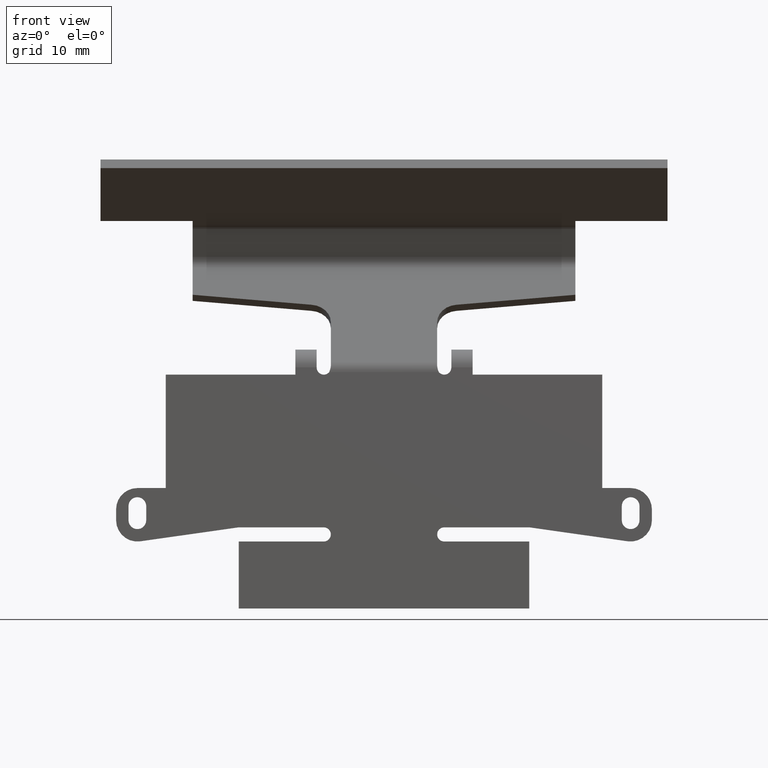
[diagram: clean part render]
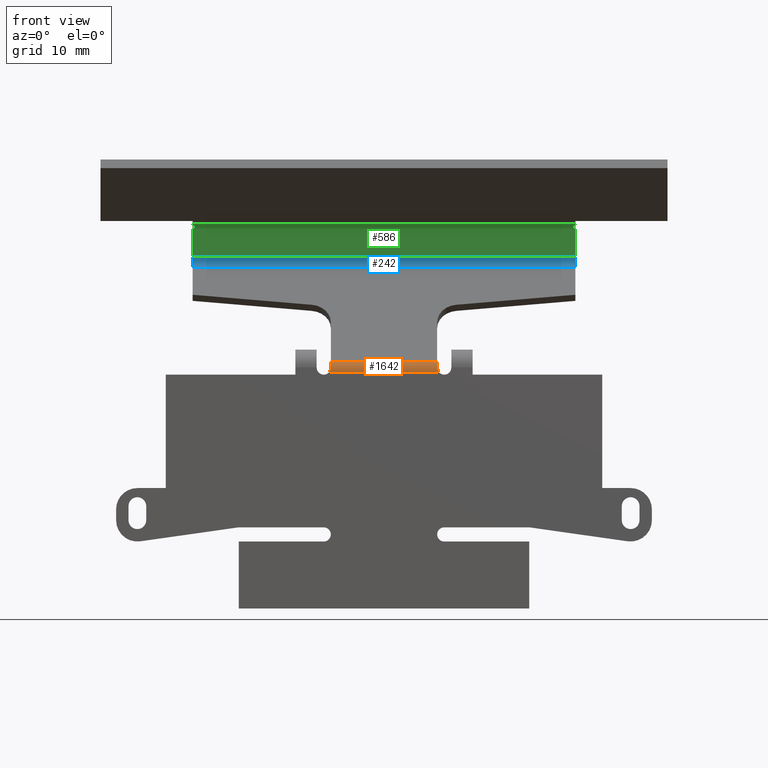
[diagram: same view with three faces highlighted in distinct colors, each labeled with its STEP entity id]
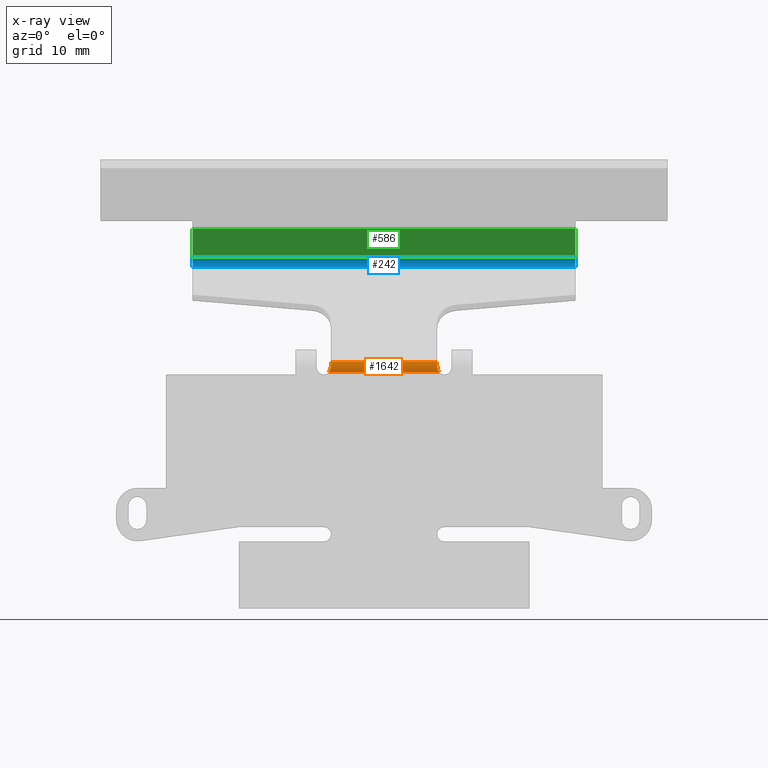
[diagram: x-ray of the same camera — body ghosted, the three highlighted faces saturated]
A machine part, front view with three faces highlighted in distinct colors.
The next image is the same camera in x-ray (body ghosted, the three faces saturated) — at least one of them is partly hidden behind the body in this view.
Their STEP definitions:

[orange] entity #1642 — the highlighted cylindrical surface (edge-blend (fillet) strip) has radius 2.5 mm, axis along (-1, 0, 0).
#80 = VECTOR ( 'NONE', #1370, 1000.000000000000000 ) ;
#111 = DIRECTION ( 'NONE',  ( -1.000000000000000000, 0.0000000000000000000, 0.0000000000000000000 ) ) ;
#116 = B_SPLINE_CURVE_WITH_KNOTS ( 'NONE', 3,
 ( #1911, #305, #903, #2511, #176, #1783 ),
 .UNSPECIFIED., .F., .F.,
 ( 4, 2, 4 ),
 ( 0.0000000000000000000, 0.5000000000000000000, 1.000000000000000000 ),
 .UNSPECIFIED. ) ;
#156 = CARTESIAN_POINT ( 'NONE',  ( 7.500000000000000000, 1.000000000000000000, -39.14617726234158100 ) ) ;
#176 = CARTESIAN_POINT ( 'NONE',  ( -7.659144584066439200, -1.500000000000000000, -38.95474786792940600 ) ) ;
#185 = ORIENTED_EDGE ( 'NONE', *, *, #1858, .T. ) ;
#225 = CARTESIAN_POINT ( 'NONE',  ( 7.500000000000000000, -1.331501015783343100, -38.24390068977570000 ) ) ;
#234 = CARTESIAN_POINT ( 'NONE',  ( 7.736812640544448200, -1.500000000000000000, -39.14617726234158100 ) ) ;
#238 = ORIENTED_EDGE ( 'NONE', *, *, #962, .T. ) ;
#277 = CIRCLE ( 'NONE', #1116, 2.500000000000002200 ) ;
#305 = CARTESIAN_POINT ( 'NONE',  ( -7.501269490370140700, -1.373465561305350800, -38.35233792896192300 ) ) ;
#307 = ORIENTED_EDGE ( 'NONE', *, *, #472, .T. ) ;
#320 = CYLINDRICAL_SURFACE ( 'NONE', #2446, 2.500000000000002200 ) ;
#359 = CARTESIAN_POINT ( 'NONE',  ( 15.58287106500185400, 1.000000000000000000, -39.14617726234158100 ) ) ;
#472 = EDGE_CURVE ( 'NONE', #1156, #1683, #277, .T. ) ;
#496 = VECTOR ( 'NONE', #111, 1000.000000000000000 ) ;
#506 = VERTEX_POINT ( 'NONE', #1491 ) ;
#772 = VERTEX_POINT ( 'NONE', #1795 ) ;
#785 = EDGE_CURVE ( 'NONE', #506, #1156, #2432, .T. ) ;
#797 = AXIS2_PLACEMENT_3D ( 'NONE', #156, #1070, #859 ) ;
#859 = DIRECTION ( 'NONE',  ( 0.0000000000000000000, 0.0000000000000000000, -1.000000000000000000 ) ) ;
#903 = CARTESIAN_POINT ( 'NONE',  ( -7.521638622267245100, -1.414897275738043100, -38.48139045276356300 ) ) ;
#940 = VERTEX_POINT ( 'NONE', #2852 ) ;
#962 = EDGE_CURVE ( 'NONE', #1683, #772, #116, .T. ) ;
#999 = CARTESIAN_POINT ( 'NONE',  ( 7.552390944871888200, -1.447572610154831600, -38.61414467633220900 ) ) ;
#1021 = CARTESIAN_POINT ( 'NONE',  ( 7.679646132469533100, -1.499999999999999800, -39.04573129605319100 ) ) ;
#1070 = DIRECTION ( 'NONE',  ( -1.000000000000000000, -0.0000000000000000000, -0.0000000000000000000 ) ) ;
#1109 = DIRECTION ( 'NONE',  ( 0.0000000000000000000, 0.0000000000000000000, 1.000000000000000000 ) ) ;
#1116 = AXIS2_PLACEMENT_3D ( 'NONE', #1718, #2174, #2559 ) ;
#1121 = CARTESIAN_POINT ( 'NONE',  ( 8.500000000000000000, -1.047880110722477300, -37.71223617146396400 ) ) ;
#1156 = VERTEX_POINT ( 'NONE', #2838 ) ;
#1271 = CARTESIAN_POINT ( 'NONE',  ( 7.500000000000000000, -1.331501015783343100, -38.24390068977570000 ) ) ;
#1285 = FACE_OUTER_BOUND ( 'NONE', #2195, .T. ) ;
#1349 = ORIENTED_EDGE ( 'NONE', *, *, #785, .T. ) ;
#1370 = DIRECTION ( 'NONE',  ( -1.000000000000000000, 0.0000000000000000000, 0.0000000000000000000 ) ) ;
#1491 = CARTESIAN_POINT ( 'NONE',  ( 7.500000000000000000, -1.047880110722477300, -37.71223617146396400 ) ) ;
#1563 = EDGE_CURVE ( 'NONE', #940, #2673, #2795, .T. ) ;
#1595 = LINE ( 'NONE', #2725, #80 ) ;
#1626 = CIRCLE ( 'NONE', #797, 2.500000000000002200 ) ;
#1642 = ADVANCED_FACE ( 'NONE', ( #1285 ), #320, .T. ) ;
#1683 = VERTEX_POINT ( 'NONE', #2066 ) ;
#1718 = CARTESIAN_POINT ( 'NONE',  ( -7.500000000000000000, 1.000000000000000000, -39.14617726234158100 ) ) ;
#1783 = CARTESIAN_POINT ( 'NONE',  ( -7.736812640544449900, -1.500000000000000000, -39.14617726234158100 ) ) ;
#1795 = CARTESIAN_POINT ( 'NONE',  ( -7.736812640544449900, -1.500000000000000000, -39.14617726234158100 ) ) ;
#1858 = EDGE_CURVE ( 'NONE', #2673, #506, #1626, .T. ) ;
#1911 = CARTESIAN_POINT ( 'NONE',  ( -7.500000000000000000, -1.331501015783343100, -38.24390068977570000 ) ) ;
#2066 = CARTESIAN_POINT ( 'NONE',  ( -7.500000000000000000, -1.331501015783343100, -38.24390068977570000 ) ) ;
#2174 = DIRECTION ( 'NONE',  ( 1.000000000000000000, -0.0000000000000000000, -0.0000000000000000000 ) ) ;
#2195 = EDGE_LOOP ( 'NONE', ( #2780, #2545, #185, #1349, #307, #238 ) ) ;
#2368 = CARTESIAN_POINT ( 'NONE',  ( 7.521771038773234600, -1.406302447580477100, -38.43718911099792700 ) ) ;
#2432 = LINE ( 'NONE', #1121, #496 ) ;
#2446 = AXIS2_PLACEMENT_3D ( 'NONE', #359, #2724, #1109 ) ;
#2511 = CARTESIAN_POINT ( 'NONE',  ( -7.600576169115395700, -1.478188782762191300, -38.78251435311435800 ) ) ;
#2545 = ORIENTED_EDGE ( 'NONE', *, *, #1563, .T. ) ;
#2559 = DIRECTION ( 'NONE',  ( 0.0000000000000000000, 0.0000000000000000000, 1.000000000000000000 ) ) ;
#2607 = CARTESIAN_POINT ( 'NONE',  ( 7.631328491720040600, -1.494339626431308900, -38.91827337345311800 ) ) ;
#2673 = VERTEX_POINT ( 'NONE', #1271 ) ;
#2724 = DIRECTION ( 'NONE',  ( -1.000000000000000000, 0.0000000000000000000, 0.0000000000000000000 ) ) ;
#2725 = CARTESIAN_POINT ( 'NONE',  ( 8.500000000000000000, -1.500000000000000000, -39.14617726234158100 ) ) ;
#2780 = ORIENTED_EDGE ( 'NONE', *, *, #2807, .F. ) ;
#2795 = B_SPLINE_CURVE_WITH_KNOTS ( 'NONE', 3,
 ( #234, #1021, #2607, #999, #2368, #225 ),
 .UNSPECIFIED., .F., .F.,
 ( 4, 2, 4 ),
 ( 0.0000000000000000000, 0.5000000000000000000, 1.000000000000000000 ),
 .UNSPECIFIED. ) ;
#2807 = EDGE_CURVE ( 'NONE', #940, #772, #1595, .T. ) ;
#2838 = CARTESIAN_POINT ( 'NONE',  ( -7.500000000000000000, -1.047880110722476900, -37.71223617146396400 ) ) ;
#2852 = CARTESIAN_POINT ( 'NONE',  ( 7.736812640544448200, -1.500000000000000000, -39.14617726234158100 ) ) ;

[blue] entity #242 — the highlighted cylindrical surface (edge-blend (fillet) strip) has radius 1.5 mm, axis along (-1, 0, 0).
#133 = VERTEX_POINT ( 'NONE', #2672 ) ;
#204 = DIRECTION ( 'NONE',  ( 2.312964634635743800E-015, 0.5735764363510473800, 0.8191520442889908000 ) ) ;
#242 = ADVANCED_FACE ( 'NONE', ( #2616 ), #2942, .F. ) ;
#260 = EDGE_CURVE ( 'NONE', #133, #2533, #1720, .T. ) ;
#275 = DIRECTION ( 'NONE',  ( -1.000000000000000000, 0.0000000000000000000, 0.0000000000000000000 ) ) ;
#636 = CARTESIAN_POINT ( 'NONE',  ( 8.500000000000000000, 8.300879995600361400, -24.36082306010884200 ) ) ;
#716 = CARTESIAN_POINT ( 'NONE',  ( 27.00000000000000700, 8.300879995600361400, -24.36082306010884200 ) ) ;
#736 = CARTESIAN_POINT ( 'NONE',  ( -26.99999999999997500, 8.300879995600363200, -24.36082306010884200 ) ) ;
#873 = ORIENTED_EDGE ( 'NONE', *, *, #1500, .T. ) ;
#926 = VECTOR ( 'NONE', #1096, 1000.000000000000000 ) ;
#1060 = AXIS2_PLACEMENT_3D ( 'NONE', #2351, #1810, #204 ) ;
#1096 = DIRECTION ( 'NONE',  ( -1.000000000000000000, 0.0000000000000000000, 0.0000000000000000000 ) ) ;
#1104 = EDGE_CURVE ( 'NONE', #2249, #2533, #1498, .T. ) ;
#1176 = DIRECTION ( 'NONE',  ( 0.0000000000000000000, -0.5735764363510473800, -0.8191520442889908000 ) ) ;
#1302 = EDGE_CURVE ( 'NONE', #1841, #133, #2382, .T. ) ;
#1386 = CARTESIAN_POINT ( 'NONE',  ( 8.500000000000000000, 8.431613609721852100, -22.86653101297121500 ) ) ;
#1387 = CARTESIAN_POINT ( 'NONE',  ( 54.07218927023035300, 7.072151929166875700, -23.50045840558227200 ) ) ;
#1498 = LINE ( 'NONE', #636, #2055 ) ;
#1500 = EDGE_CURVE ( 'NONE', #2249, #1841, #2358, .T. ) ;
#1630 = DIRECTION ( 'NONE',  ( 0.0000000000000000000, 0.5735764363510473800, 0.8191520442889908000 ) ) ;
#1720 = CIRCLE ( 'NONE', #2283, 1.499999999999999300 ) ;
#1810 = DIRECTION ( 'NONE',  ( 1.000000000000000000, -2.147486521060368200E-015, -8.676408741358783900E-016 ) ) ;
#1814 = ORIENTED_EDGE ( 'NONE', *, *, #260, .T. ) ;
#1841 = VERTEX_POINT ( 'NONE', #2408 ) ;
#1879 = CARTESIAN_POINT ( 'NONE',  ( -26.99999999999997500, 7.072151929166875700, -23.50045840558227200 ) ) ;
#2030 = EDGE_LOOP ( 'NONE', ( #1814, #2576, #873, #2796 ) ) ;
#2055 = VECTOR ( 'NONE', #2262, 1000.000000000000000 ) ;
#2249 = VERTEX_POINT ( 'NONE', #716 ) ;
#2262 = DIRECTION ( 'NONE',  ( -1.000000000000000000, 0.0000000000000000000, 0.0000000000000000000 ) ) ;
#2283 = AXIS2_PLACEMENT_3D ( 'NONE', #1879, #2551, #1176 ) ;
#2351 = CARTESIAN_POINT ( 'NONE',  ( 27.00000000000000400, 7.072151929166875700, -23.50045840558227200 ) ) ;
#2358 = CIRCLE ( 'NONE', #1060, 1.499999999999999300 ) ;
#2382 = LINE ( 'NONE', #1386, #926 ) ;
#2408 = CARTESIAN_POINT ( 'NONE',  ( 27.00000000000000400, 8.431613609721852100, -22.86653101297121500 ) ) ;
#2533 = VERTEX_POINT ( 'NONE', #736 ) ;
#2551 = DIRECTION ( 'NONE',  ( -1.000000000000000000, -0.0000000000000000000, 0.0000000000000000000 ) ) ;
#2576 = ORIENTED_EDGE ( 'NONE', *, *, #1104, .F. ) ;
#2616 = FACE_OUTER_BOUND ( 'NONE', #2030, .T. ) ;
#2644 = AXIS2_PLACEMENT_3D ( 'NONE', #1387, #275, #1630 ) ;
#2672 = CARTESIAN_POINT ( 'NONE',  ( -26.99999999999997200, 8.431613609721850400, -22.86653101297121500 ) ) ;
#2796 = ORIENTED_EDGE ( 'NONE', *, *, #1302, .T. ) ;
#2942 = CYLINDRICAL_SURFACE ( 'NONE', #2644, 1.499999999999999300 ) ;

[green] entity #586 — the highlighted planar face has unit normal (0, 0.9063, 0.4226).
#25 = VERTEX_POINT ( 'NONE', #1045 ) ;
#133 = VERTEX_POINT ( 'NONE', #2672 ) ;
#152 = LINE ( 'NONE', #2148, #677 ) ;
#251 = AXIS2_PLACEMENT_3D ( 'NONE', #2221, #2391, #2365 ) ;
#304 = ORIENTED_EDGE ( 'NONE', *, *, #895, .T. ) ;
#317 = CARTESIAN_POINT ( 'NONE',  ( 27.00000000000000700, 11.42294676387603800, -29.28146566360453600 ) ) ;
#530 = ORIENTED_EDGE ( 'NONE', *, *, #995, .F. ) ;
#538 = EDGE_LOOP ( 'NONE', ( #1652, #696, #304, #530 ) ) ;
#586 = ADVANCED_FACE ( 'NONE', ( #1227 ), #791, .F. ) ;
#677 = VECTOR ( 'NONE', #1448, 1000.000000000000100 ) ;
#696 = ORIENTED_EDGE ( 'NONE', *, *, #1019, .F. ) ;
#791 = PLANE ( 'NONE',  #251 ) ;
#825 = LINE ( 'NONE', #317, #1458 ) ;
#895 = EDGE_CURVE ( 'NONE', #25, #1469, #1862, .T. ) ;
#926 = VECTOR ( 'NONE', #1096, 1000.000000000000000 ) ;
#995 = EDGE_CURVE ( 'NONE', #133, #1469, #152, .T. ) ;
#1014 = DIRECTION ( 'NONE',  ( -1.000000000000000000, 0.0000000000000000000, 0.0000000000000000000 ) ) ;
#1019 = EDGE_CURVE ( 'NONE', #25, #1841, #825, .T. ) ;
#1045 = CARTESIAN_POINT ( 'NONE',  ( 27.00000000000000400, 6.600470327929659900, -18.93963157272329000 ) ) ;
#1096 = DIRECTION ( 'NONE',  ( -1.000000000000000000, 0.0000000000000000000, 0.0000000000000000000 ) ) ;
#1227 = FACE_OUTER_BOUND ( 'NONE', #538, .T. ) ;
#1302 = EDGE_CURVE ( 'NONE', #1841, #133, #2382, .T. ) ;
#1386 = CARTESIAN_POINT ( 'NONE',  ( 8.500000000000000000, 8.431613609721852100, -22.86653101297121500 ) ) ;
#1448 = DIRECTION ( 'NONE',  ( 2.569960705150825400E-016, -0.4226182617407002200, 0.9063077870366494900 ) ) ;
#1458 = VECTOR ( 'NONE', #2834, 1000.000000000000100 ) ;
#1469 = VERTEX_POINT ( 'NONE', #2631 ) ;
#1652 = ORIENTED_EDGE ( 'NONE', *, *, #1302, .F. ) ;
#1841 = VERTEX_POINT ( 'NONE', #2408 ) ;
#1862 = LINE ( 'NONE', #2162, #2609 ) ;
#2148 = CARTESIAN_POINT ( 'NONE',  ( -27.00000000000000700, 11.42294676387603800, -29.28146566360453600 ) ) ;
#2162 = CARTESIAN_POINT ( 'NONE',  ( 8.500000000000000000, 6.600470327929659900, -18.93963157272329000 ) ) ;
#2221 = CARTESIAN_POINT ( 'NONE',  ( 8.500000000000000000, 16.49436590476444000, -40.15715910804433300 ) ) ;
#2365 = DIRECTION ( 'NONE',  ( 0.0000000000000000000, -0.4226182617407002200, 0.9063077870366494900 ) ) ;
#2382 = LINE ( 'NONE', #1386, #926 ) ;
#2391 = DIRECTION ( 'NONE',  ( 0.0000000000000000000, 0.9063077870366496000, 0.4226182617407002700 ) ) ;
#2408 = CARTESIAN_POINT ( 'NONE',  ( 27.00000000000000400, 8.431613609721852100, -22.86653101297121500 ) ) ;
#2609 = VECTOR ( 'NONE', #1014, 1000.000000000000000 ) ;
#2631 = CARTESIAN_POINT ( 'NONE',  ( -27.00000000000000400, 6.600470327929659900, -18.93963157272329000 ) ) ;
#2672 = CARTESIAN_POINT ( 'NONE',  ( -26.99999999999997200, 8.431613609721850400, -22.86653101297121500 ) ) ;
#2834 = DIRECTION ( 'NONE',  ( 2.569960705150825400E-016, 0.4226182617407002200, -0.9063077870366494900 ) ) ;